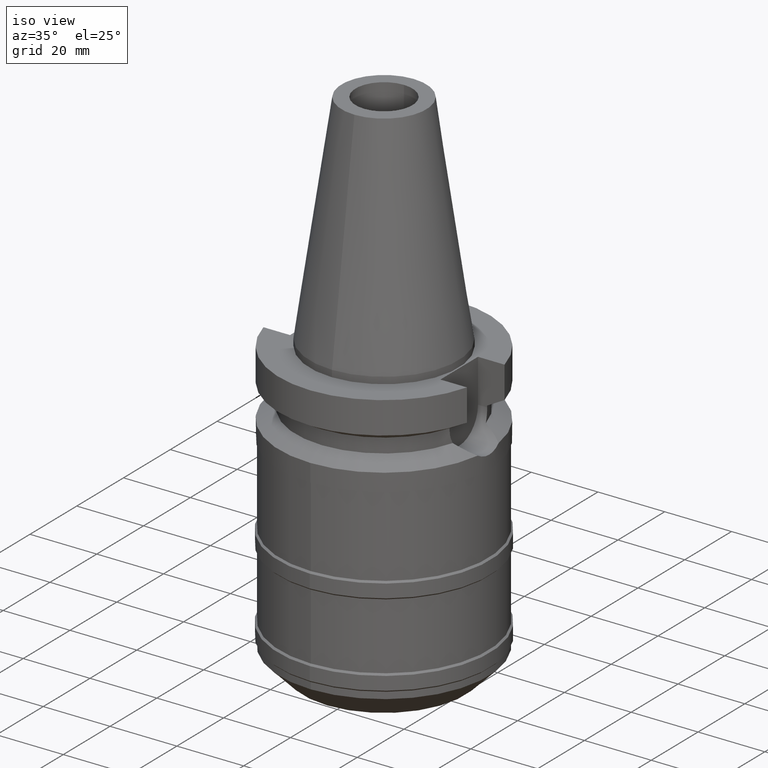
[diagram: clean part render]
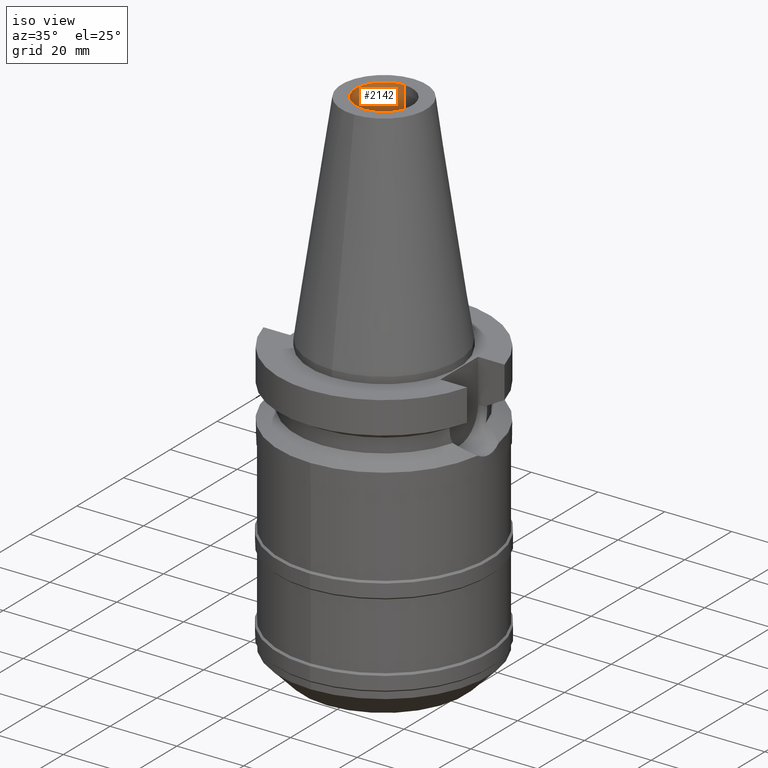
[diagram: same view with one face highlighted and labeled with its STEP entity id]
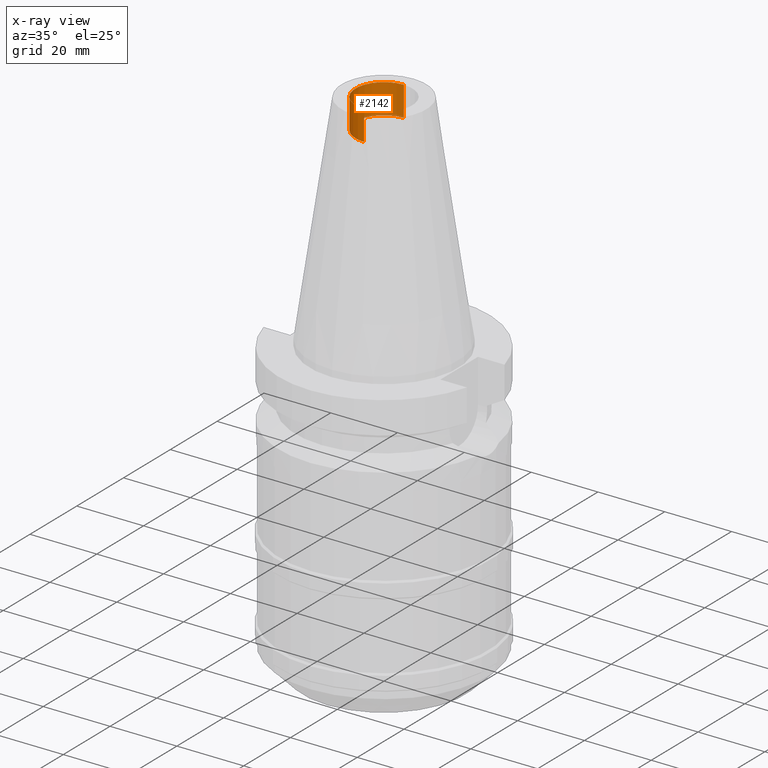
[diagram: x-ray of the same camera — body ghosted, the highlighted face saturated]
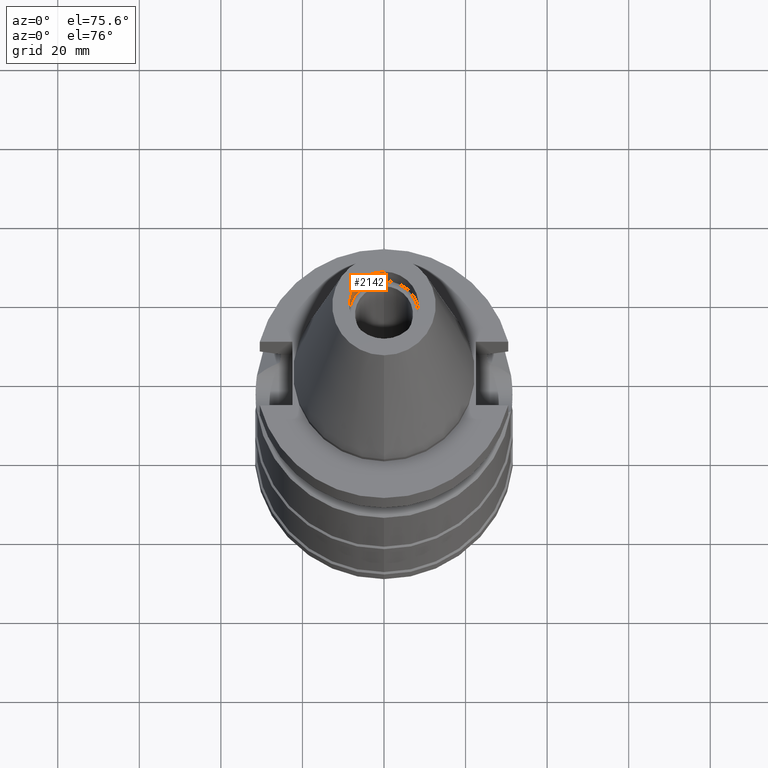
[diagram: same view with one face highlighted and labeled with its STEP entity id]
A machine part, iso view. The second image highlights one B-rep face of the part: STEP entity #2142.
The next image is the same camera in x-ray: the body ghosted, the highlighted face saturated — about 3% of this face is hidden behind the body in this view.
A second angle (auxiliary view) of the same face is appended — the face is thin or edge-on in the first view.
In plain terms, the highlighted cylindrical surface (edge-blend (fillet) strip) has radius 8.5 mm, axis along (0, 0, -1).
Its self-contained STEP definition (entity closure, byte-faithful):
#42=CARTESIAN_POINT('',(0.E0,2.120720862083E-14,6.54E1));
#43=DIRECTION('',(0.E0,0.E0,1.E0));
#44=DIRECTION('',(0.E0,1.E0,0.E0));
#45=AXIS2_PLACEMENT_3D('',#42,#43,#44);
#1067=CARTESIAN_POINT('',(0.E0,2.120720862083E-14,5.64E1));
#1068=DIRECTION('',(0.E0,0.E0,-1.E0));
#1069=DIRECTION('',(0.E0,-1.E0,0.E0));
#1070=AXIS2_PLACEMENT_3D('',#1067,#1068,#1069);
#1099=DIRECTION('',(0.E0,0.E0,1.E0));
#1100=VECTOR('',#1099,9.E0);
#1101=CARTESIAN_POINT('',(0.E0,-8.5E0,5.64E1));
#1102=LINE('',#1101,#1100);
#1106=DIRECTION('',(0.E0,0.E0,1.E0));
#1107=VECTOR('',#1106,9.E0);
#1108=CARTESIAN_POINT('',(0.E0,8.5E0,5.64E1));
#1109=LINE('',#1108,#1107);
#1117=CARTESIAN_POINT('',(0.E0,-8.5E0,6.54E1));
#1118=CARTESIAN_POINT('',(0.E0,8.5E0,6.54E1));
#1119=VERTEX_POINT('',#1117);
#1120=VERTEX_POINT('',#1118);
#1121=CARTESIAN_POINT('',(0.E0,8.5E0,5.64E1));
#1122=VERTEX_POINT('',#1121);
#1123=CARTESIAN_POINT('',(0.E0,-8.5E0,5.64E1));
#1124=VERTEX_POINT('',#1123);
#2129=CARTESIAN_POINT('',(0.E0,2.120720862083E-14,7.317E1));
#2130=DIRECTION('',(0.E0,0.E0,-1.E0));
#2131=DIRECTION('',(0.E0,-1.E0,0.E0));
#2132=AXIS2_PLACEMENT_3D('',#2129,#2130,#2131);
#2133=CYLINDRICAL_SURFACE('',#2132,8.5E0);
#2135=ORIENTED_EDGE('',*,*,#2134,.F.);
#2136=ORIENTED_EDGE('',*,*,#2118,.F.);
#2138=ORIENTED_EDGE('',*,*,#2137,.T.);
#2139=ORIENTED_EDGE('',*,*,#1291,.F.);
#2140=EDGE_LOOP('',(#2135,#2136,#2138,#2139));
#2141=FACE_OUTER_BOUND('',#2140,.F.);
#46=CIRCLE('',#45,8.5E0);
#1071=CIRCLE('',#1070,8.5E0);
#1291=EDGE_CURVE('',#1120,#1119,#46,.T.);
#2118=EDGE_CURVE('',#1124,#1122,#1071,.T.);
#2134=EDGE_CURVE('',#1122,#1120,#1109,.T.);
#2137=EDGE_CURVE('',#1124,#1119,#1102,.T.);
#2142=ADVANCED_FACE('',(#2141),#2133,.F.);